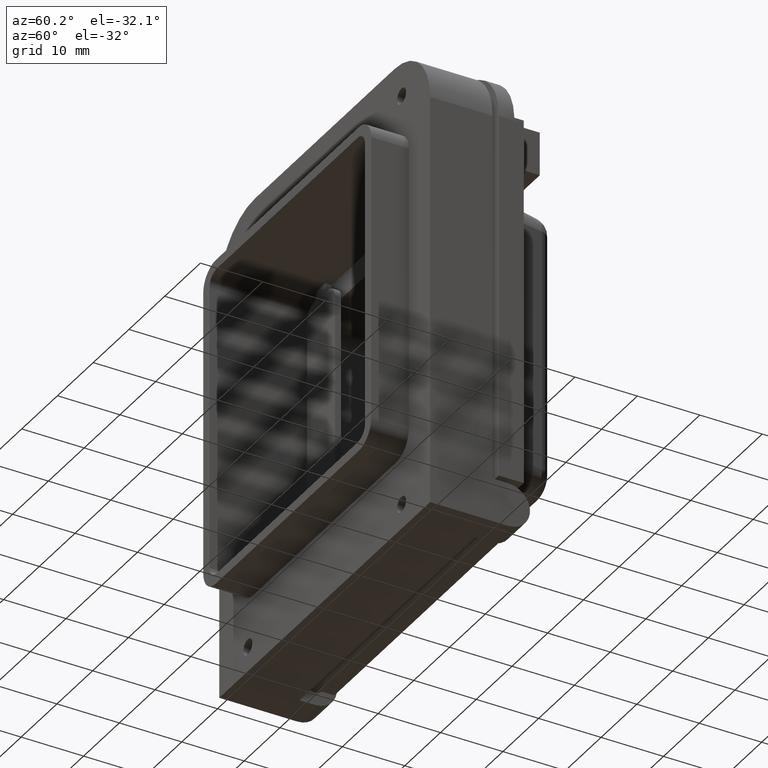
[diagram: clean part render]
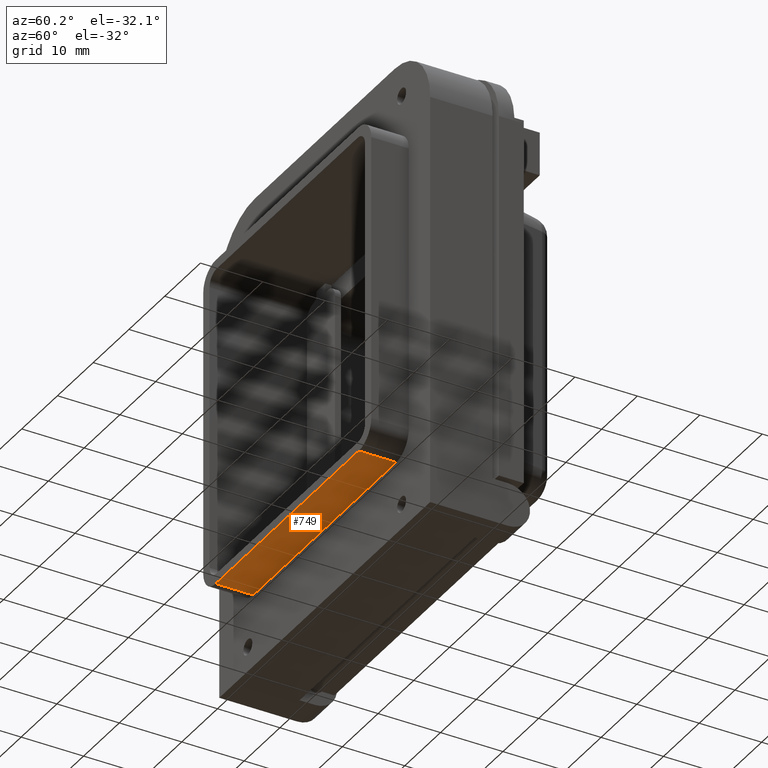
[diagram: same view with one face highlighted and labeled with its STEP entity id]
A machine part, auxiliary view. The second image highlights one B-rep face of the part: STEP entity #749.
In plain terms, the highlighted planar face has unit normal (-0, 0, 1).
Its self-contained STEP definition (entity closure, byte-faithful):
#594 = VERTEX_POINT ( 'NONE', #3114 ) ;
#596 = EDGE_CURVE ( 'NONE', #594, #599, #3113, .T. ) ;
#599 = VERTEX_POINT ( 'NONE', #3164 ) ;
#730 = ORIENTED_EDGE ( 'NONE', *, *, #731, .F. ) ;
#731 = EDGE_CURVE ( 'NONE', #745, #754, #3480, .T. ) ;
#732 = ORIENTED_EDGE ( 'NONE', *, *, #744, .T. ) ;
#744 = EDGE_CURVE ( 'NONE', #745, #594, #3542, .T. ) ;
#745 = VERTEX_POINT ( 'NONE', #3538 ) ;
#749 = ADVANCED_FACE ( 'NONE', ( #3531 ), #3575, .F. ) ;
#750 = EDGE_LOOP ( 'NONE', ( #751, #752, #730, #732 ) ) ;
#751 = ORIENTED_EDGE ( 'NONE', *, *, #596, .T. ) ;
#752 = ORIENTED_EDGE ( 'NONE', *, *, #753, .F. ) ;
#753 = EDGE_CURVE ( 'NONE', #754, #599, #3570, .T. ) ;
#754 = VERTEX_POINT ( 'NONE', #3566 ) ;
#3110 = DIRECTION ( 'NONE',  ( 1.000000000000000000, -0.0000000000000000000, 8.673617379884030500E-017 ) ) ;
#3111 = VECTOR ( 'NONE', #3110, 1000.000000000000000 ) ;
#3112 = CARTESIAN_POINT ( 'NONE',  ( 20.00000000000001400, 0.0000000000000000000, -26.54999999999999400 ) ) ;
#3113 = LINE ( 'NONE', #3112, #3111 ) ;
#3114 = CARTESIAN_POINT ( 'NONE',  ( -20.00000000000001100, 0.0000000000000000000, -26.54999999999999700 ) ) ;
#3164 = CARTESIAN_POINT ( 'NONE',  ( 20.00000000000001400, 0.0000000000000000000, -26.54999999999999000 ) ) ;
#3477 = DIRECTION ( 'NONE',  ( 1.000000000000000000, -0.0000000000000000000, 8.673617379884030500E-017 ) ) ;
#3478 = VECTOR ( 'NONE', #3477, 1000.000000000000000 ) ;
#3479 = CARTESIAN_POINT ( 'NONE',  ( 20.00000000000001400, -6.000000000000000000, -26.54999999999999400 ) ) ;
#3480 = LINE ( 'NONE', #3479, #3478 ) ;
#3531 = FACE_OUTER_BOUND ( 'NONE', #750, .T. ) ;
#3538 = CARTESIAN_POINT ( 'NONE',  ( -20.00000000000000700, -6.000000000000000000, -26.54999999999999700 ) ) ;
#3539 = DIRECTION ( 'NONE',  ( -0.0000000000000000000, 1.000000000000000000, -0.0000000000000000000 ) ) ;
#3540 = VECTOR ( 'NONE', #3539, 1000.000000000000000 ) ;
#3541 = CARTESIAN_POINT ( 'NONE',  ( -20.00000000000000700, -6.000000000000000000, -26.54999999999999700 ) ) ;
#3542 = LINE ( 'NONE', #3541, #3540 ) ;
#3566 = CARTESIAN_POINT ( 'NONE',  ( 20.00000000000001400, -6.000000000000000000, -26.54999999999999000 ) ) ;
#3567 = DIRECTION ( 'NONE',  ( -0.0000000000000000000, 1.000000000000000000, -0.0000000000000000000 ) ) ;
#3568 = VECTOR ( 'NONE', #3567, 1000.000000000000000 ) ;
#3569 = CARTESIAN_POINT ( 'NONE',  ( 20.00000000000001400, -6.000000000000000000, -26.54999999999999000 ) ) ;
#3570 = LINE ( 'NONE', #3569, #3568 ) ;
#3571 = DIRECTION ( 'NONE',  ( 1.000000000000000000, 0.0000000000000000000, 8.673617379884029300E-017 ) ) ;
#3572 = DIRECTION ( 'NONE',  ( -8.673617379884029300E-017, 0.0000000000000000000, 1.000000000000000000 ) ) ;
#3573 = CARTESIAN_POINT ( 'NONE',  ( 20.00000000000001400, -6.000000000000000000, -26.54999999999999400 ) ) ;
#3574 = AXIS2_PLACEMENT_3D ( 'NONE', #3573, #3572, #3571 ) ;
#3575 = PLANE ( 'NONE',  #3574 ) ;